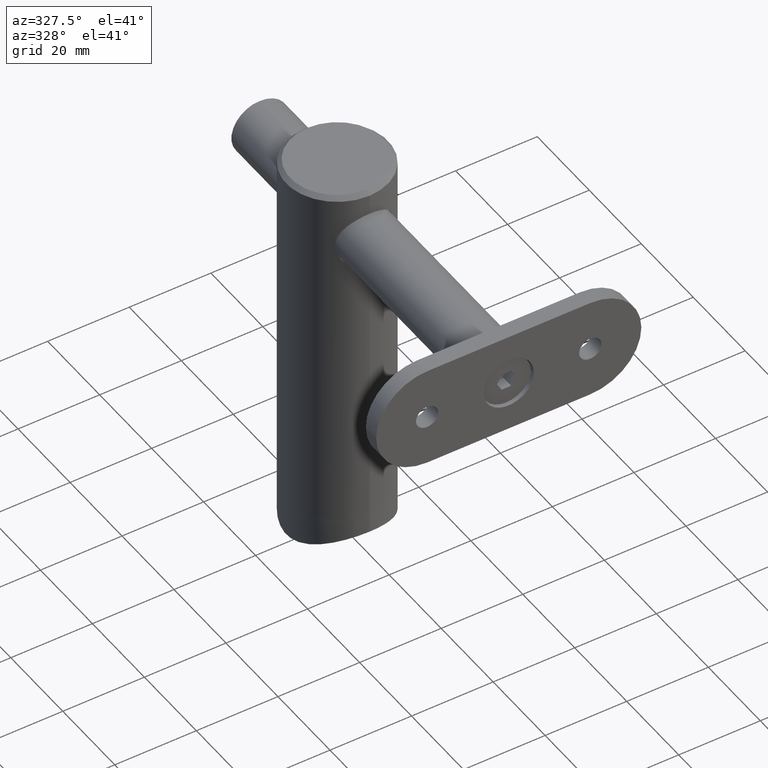
[diagram: clean part render]
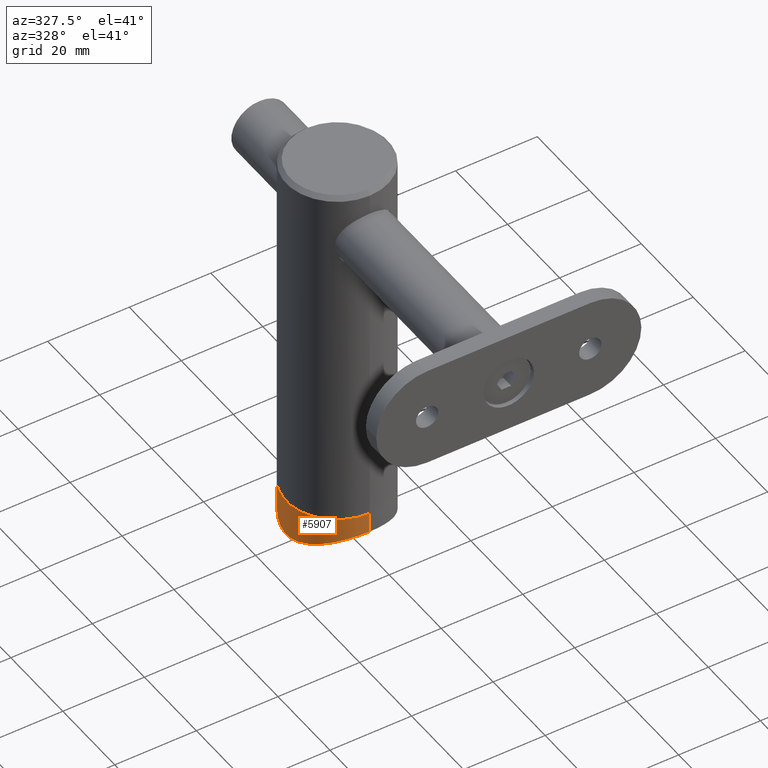
[diagram: same view with one face highlighted and labeled with its STEP entity id]
A machine part, auxiliary view. The second image highlights one B-rep face of the part: STEP entity #5907.
In plain terms, the highlighted cylindrical surface (partial cylindrical patch) has radius 12.5 mm, axis along (0, 0, -1).
Its self-contained STEP definition (entity closure, byte-faithful):
#17 = CARTESIAN_POINT ( 'NONE',  ( -9.926636468171466277, 7.639131853456515131, -2.460587857928711042 ) ) ;
#90 = CARTESIAN_POINT ( 'NONE',  ( -10.80857782698150871, 6.291928922265645596, -2.960889035143795756 ) ) ;
#724 = DIRECTION ( 'NONE',  ( 0.000000000000000000, 1.000000000000000000, 1.387778780781445676E-16 ) ) ;
#984 = DIRECTION ( 'NONE',  ( -0.000000000000000000, 1.224646799147353207E-16, -1.000000000000000000 ) ) ;
#1041 = CARTESIAN_POINT ( 'NONE',  ( -8.569357823279590392, -9.109024265841890511, -1.806659297143438980 ) ) ;
#1444 = CYLINDRICAL_SURFACE ( 'NONE', #6039, 12.50000000000000000 ) ;
#1521 = CARTESIAN_POINT ( 'NONE',  ( -12.50092163456458394, 0.8325225752573188753, -4.077880983653366265 ) ) ;
#2641 = CARTESIAN_POINT ( 'NONE',  ( -12.16283172011047320, -2.913318855141282526, -3.835786719495810626 ) ) ;
#3007 = CARTESIAN_POINT ( 'NONE',  ( -11.36768113948518710, 5.214514510065643371, -3.304441698743988631 ) ) ;
#3075 = EDGE_CURVE ( 'NONE', #16817, #5175, #6682, .T. ) ;
#3141 = CARTESIAN_POINT ( 'NONE',  ( -12.16984790407604500, 2.883996753870301966, -3.840709158031511805 ) ) ;
#3265 = AXIS2_PLACEMENT_3D ( 'NONE', #11083, #5346, #724 ) ;
#3401 = DIRECTION ( 'NONE',  ( -0.000000000000000000, 1.224646799147353207E-16, -1.000000000000000000 ) ) ;
#3530 = EDGE_CURVE ( 'NONE', #16817, #13731, #7298, .T. ) ;
#3907 = CARTESIAN_POINT ( 'NONE',  ( -5.615852831644746246, -11.19741679516262423, -0.7426697937745319056 ) ) ;
#4043 = CARTESIAN_POINT ( 'NONE',  ( -9.131153934576975217, -8.545773481795482240, -2.064755425040014636 ) ) ;
#4157 = CARTESIAN_POINT ( 'NONE',  ( -0.8474616539393305947, -12.50000000000000355, -0.000000000000000000 ) ) ;
#4510 = CARTESIAN_POINT ( 'NONE',  ( -3.314268895872201970, 12.05973822206781776, -0.2568123239795907509 ) ) ;
#4768 = CARTESIAN_POINT ( 'NONE',  ( -0.8493063021244290356, 12.47821017736088223, -0.01286860730927284584 ) ) ;
#4808 = CARTESIAN_POINT ( 'NONE',  ( -11.81299108572395085, -4.107946293886024058, -3.595584469514719217 ) ) ;
#5175 = VERTEX_POINT ( 'NONE', #16890 ) ;
#5346 = DIRECTION ( 'NONE',  ( -0.000000000000000000, 1.224646799147353207E-16, -1.000000000000000000 ) ) ;
#5404 = CARTESIAN_POINT ( 'NONE',  ( -7.335528771759535438, -10.12938846727852571, -1.306364138595595970 ) ) ;
#5472 = CARTESIAN_POINT ( 'NONE',  ( -3.299544761782136071, -12.06386656912337862, -0.2544362983334328976 ) ) ;
#5531 = CARTESIAN_POINT ( 'NONE',  ( -9.398677270982499721, -8.250758313400194055, -2.195094919896831698 ) ) ;
#5538 = CARTESIAN_POINT ( 'NONE',  ( 0.000000000000000000, 12.50000000000000000, 1.530808498934191521E-15 ) ) ;
#5605 = EDGE_LOOP ( 'NONE', ( #6310, #12845, #18399, #7471 ) ) ;
#5907 = ADVANCED_FACE ( 'NONE', ( #12373 ), #1444, .T. ) ;
#6039 = AXIS2_PLACEMENT_3D ( 'NONE', #13857, #3401, #6456 ) ;
#6210 = EDGE_CURVE ( 'NONE', #13731, #13457, #16074, .T. ) ;
#6310 = ORIENTED_EDGE ( 'NONE', *, *, #3075, .F. ) ;
#6456 = DIRECTION ( 'NONE',  ( 0.000000000000000000, 1.000000000000000000, 1.224646799147353207E-16 ) ) ;
#6682 = LINE ( 'NONE', #10345, #14115 ) ;
#6786 = CARTESIAN_POINT ( 'NONE',  ( 0.000000000000000000, 12.50000000000000000, -5.261240927112904875E-16 ) ) ;
#6959 = CARTESIAN_POINT ( 'NONE',  ( -4.096177303198109243, -11.81715717646936348, -0.3955541790620944465 ) ) ;
#7298 = CIRCLE ( 'NONE', #3265, 12.50000000000000000 ) ;
#7471 = ORIENTED_EDGE ( 'NONE', *, *, #18602, .F. ) ;
#7532 = CARTESIAN_POINT ( 'NONE',  ( -12.32914928014637646, -2.100947460388592702, -3.953479877655620367 ) ) ;
#7617 = CARTESIAN_POINT ( 'NONE',  ( -11.67210911516328764, -4.491739155361245572, -3.501495300727554216 ) ) ;
#7702 = CARTESIAN_POINT ( 'NONE',  ( -8.277917003856288147, 9.374850157636908321, -1.680064173656778292 ) ) ;
#7770 = CARTESIAN_POINT ( 'NONE',  ( -0.4242796211472562584, 12.49999999999999467, -5.563124168022411105E-16 ) ) ;
#7859 = CARTESIAN_POINT ( 'NONE',  ( 1.530808498934191521E-15, -12.50000000000000000, 4.999999999999996447 ) ) ;
#7995 = CARTESIAN_POINT ( 'NONE',  ( -12.05928981790097154, -3.315947863389198336, -3.763379523277602168 ) ) ;
#8465 = CARTESIAN_POINT ( 'NONE',  ( -7.658649217430768097, -9.887116871149991937, -1.428917258316853012 ) ) ;
#8525 = CARTESIAN_POINT ( 'NONE',  ( -10.14840342747128865, -7.308901243718507246, -2.585073453788890863 ) ) ;
#9203 = CARTESIAN_POINT ( 'NONE',  ( -11.19286692429163033, 5.579736034962381019, -3.194160573709634576 ) ) ;
#9842 = CARTESIAN_POINT ( 'NONE',  ( -2.897069353050999663, -12.16672379034243434, -0.1948899815732027807 ) ) ;
#10028 = CARTESIAN_POINT ( 'NONE',  ( -10.81845405890102718, -6.312809980033596169, -2.960938029448110242 ) ) ;
#10345 = CARTESIAN_POINT ( 'NONE',  ( 1.530808498934191521E-15, -12.50000000000000000, -1.530808498934191521E-15 ) ) ;
#10434 = CARTESIAN_POINT ( 'NONE',  ( -12.06641939663192531, 3.289765162964161327, -3.768324835594354383 ) ) ;
#10500 = CARTESIAN_POINT ( 'NONE',  ( 0.000000000000000000, 12.50000000000000000, -5.261240927112904875E-16 ) ) ;
#10583 = CARTESIAN_POINT ( 'NONE',  ( -12.39224670344945167, -1.690183733302201619, -3.998982945155021174 ) ) ;
#10636 = CARTESIAN_POINT ( 'NONE',  ( -8.576233453199913370, 9.102626546136093566, -1.809681003019512291 ) ) ;
#10693 = CARTESIAN_POINT ( 'NONE',  ( -7.658205628427092293, 9.887548328762060024, -1.428715490893913032 ) ) ;
#11083 = CARTESIAN_POINT ( 'NONE',  ( 0.000000000000000000, -6.123233995736764310E-16, 4.999999999999998224 ) ) ;
#11448 = CARTESIAN_POINT ( 'NONE',  ( -12.49952788043968255, -0.4368485482069772163, -4.076863514619260442 ) ) ;
#11457 = CARTESIAN_POINT ( 'NONE',  ( 1.530808498934191521E-15, -12.50000000000000000, 0.000000000000000000 ) ) ;
#11925 = VECTOR ( 'NONE', #984, 1000.000000000000000 ) ;
#11933 = CARTESIAN_POINT ( 'NONE',  ( -5.634036949567863495, 11.18857916297123722, -0.7475340222135644641 ) ) ;
#12004 = CARTESIAN_POINT ( 'NONE',  ( -6.341786811947642377, 10.80157710299961416, -0.9585494183447915706 ) ) ;
#12061 = CARTESIAN_POINT ( 'NONE',  ( -2.913028033381145132, 12.16292737376221034, -0.1970903410221276075 ) ) ;
#12193 = CARTESIAN_POINT ( 'NONE',  ( -10.59835307524083170, 6.639730706434162855, -2.837515640770625680 ) ) ;
#12373 = FACE_OUTER_BOUND ( 'NONE', #5605, .T. ) ;
#12818 = CARTESIAN_POINT ( 'NONE',  ( -4.484770986791658309, -11.67494392594038821, -0.4761762759779034071 ) ) ;
#12845 = ORIENTED_EDGE ( 'NONE', *, *, #3530, .T. ) ;
#13213 = B_SPLINE_CURVE_WITH_KNOTS ( 'NONE', 3,
 ( #11457, #4157, #18897, #9842, #5472, #6959, #12818, #3907, #14297, #5404, #8465, #18830, #1041, #4043, #5531, #15907, #8525, #10028, #19166, #7617, #4808, #7995, #2641, #7532, #10583, #15726, #11448, #1521, #13473, #3141, #10434, #16564, #17846, #3007, #9203, #90, #12193, #17, #15138, #10636, #7702, #10693, #15015, #12004, #11933, #13419, #16621, #4510, #12061, #17983, #13602, #4768, #7770, #10500 ),
 .UNSPECIFIED., .F., .F.,
 ( 4, 2, 2, 2, 2, 2, 2, 2, 2, 2, 2, 2, 2, 2, 2, 2, 2, 2, 2, 2, 2, 2, 2, 2, 2, 2, 4 ),
 ( 1.489330742102178506E-18, 0.002502676506719043580, 0.003754014760078563419, 0.005005353013438084558, 0.007508029520157129440, 0.008759367773516652314, 0.01001070602687617432, 0.01126204428023569633, 0.01251338253359522007, 0.01501605904031426235, 0.01626739729367378262, 0.01751873554703330463, 0.01877007380039282664, 0.02002141205375234517, 0.02252408856047138572, 0.02377542681383090772, 0.02502676506719042973, 0.02627810332054994827, 0.02752944157390947028, 0.03003211808062851082, 0.03128345633398803977, 0.03253479458734756524, 0.03503747109406661620, 0.03628880934742614167, 0.03754014760078566715, 0.03879148585414519262, 0.04004282410750471810 ),
 .UNSPECIFIED. ) ;
#13419 = CARTESIAN_POINT ( 'NONE',  ( -4.497906677117297747, 11.66996163373025475, -0.4789896541132539487 ) ) ;
#13457 = VERTEX_POINT ( 'NONE', #6786 ) ;
#13473 = CARTESIAN_POINT ( 'NONE',  ( -12.41682490114521720, 1.662227575578486993, -4.015612738538502313 ) ) ;
#13602 = CARTESIAN_POINT ( 'NONE',  ( -1.686513140915326225, 12.39284970661473650, -0.06302927873795100000 ) ) ;
#13731 = VERTEX_POINT ( 'NONE', #18100 ) ;
#13857 = CARTESIAN_POINT ( 'NONE',  ( 0.000000000000000000, 0.000000000000000000, 0.000000000000000000 ) ) ;
#14115 = VECTOR ( 'NONE', #16341, 1000.000000000000000 ) ;
#14297 = CARTESIAN_POINT ( 'NONE',  ( -6.327442067174430917, -10.81070993117193524, -0.9537559661941119593 ) ) ;
#15015 = CARTESIAN_POINT ( 'NONE',  ( -7.337423735946506653, 10.12782281091194925, -1.307140519180897575 ) ) ;
#15138 = CARTESIAN_POINT ( 'NONE',  ( -9.421823641441761765, 8.253338742496669767, -2.198572594055990148 ) ) ;
#15726 = CARTESIAN_POINT ( 'NONE',  ( -12.47743914675955601, -0.8590761027902552582, -4.060680339665352356 ) ) ;
#15907 = CARTESIAN_POINT ( 'NONE',  ( -9.907181247822165915, -7.632686742754887455, -2.455152407378312418 ) ) ;
#16074 = LINE ( 'NONE', #5538, #11925 ) ;
#16341 = DIRECTION ( 'NONE',  ( -0.000000000000000000, 1.224646799147353207E-16, -1.000000000000000000 ) ) ;
#16564 = CARTESIAN_POINT ( 'NONE',  ( -11.82258794161551663, 4.080128214362264139, -3.602040162122799760 ) ) ;
#16621 = CARTESIAN_POINT ( 'NONE',  ( -4.105579123586816870, 11.81380058909568298, -0.3974590877189427274 ) ) ;
#16817 = VERTEX_POINT ( 'NONE', #7859 ) ;
#16890 = CARTESIAN_POINT ( 'NONE',  ( 1.530808498934191521E-15, -12.50000000000000000, 0.000000000000000000 ) ) ;
#17846 = CARTESIAN_POINT ( 'NONE',  ( -11.68253881569349950, 4.464708600178406428, -3.508378586956059308 ) ) ;
#17983 = CARTESIAN_POINT ( 'NONE',  ( -2.099149467039293615, 12.32948117877257665, -0.1002009966568856714 ) ) ;
#18100 = CARTESIAN_POINT ( 'NONE',  ( 0.000000000000000000, 12.50000000000000000, 5.000000000000000000 ) ) ;
#18399 = ORIENTED_EDGE ( 'NONE', *, *, #6210, .T. ) ;
#18602 = EDGE_CURVE ( 'NONE', #5175, #13457, #13213, .T. ) ;
#18830 = CARTESIAN_POINT ( 'NONE',  ( -8.275085783090281311, -9.377256695960115351, -1.678894091352528761 ) ) ;
#18897 = CARTESIAN_POINT ( 'NONE',  ( -1.677193835120720955, -12.41473863385456156, -0.05058743771265820921 ) ) ;
#19166 = CARTESIAN_POINT ( 'NONE',  ( -11.19951824176104083, -5.610365273027632327, -3.195789650799769621 ) ) ;